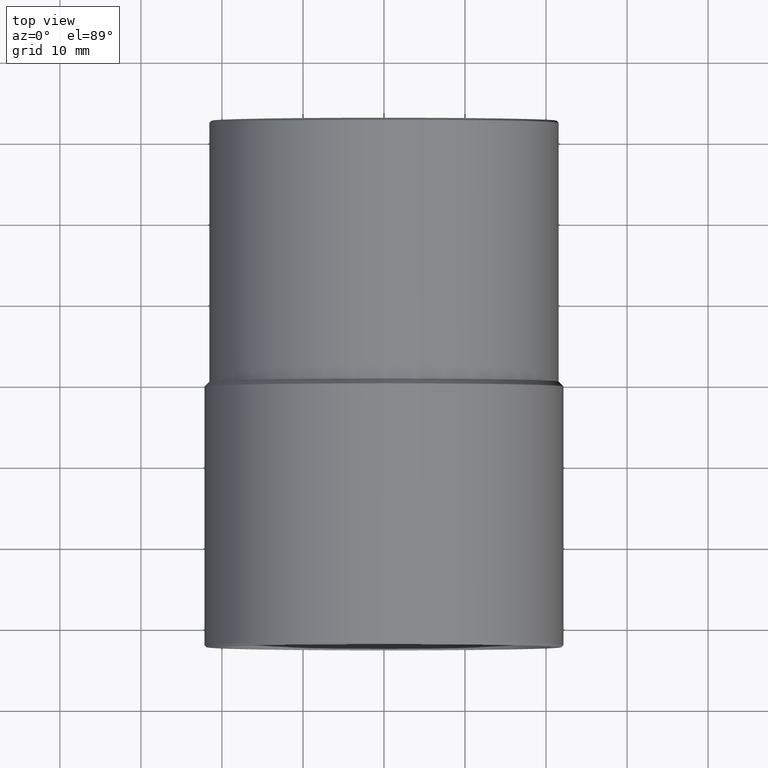
[diagram: clean part render]
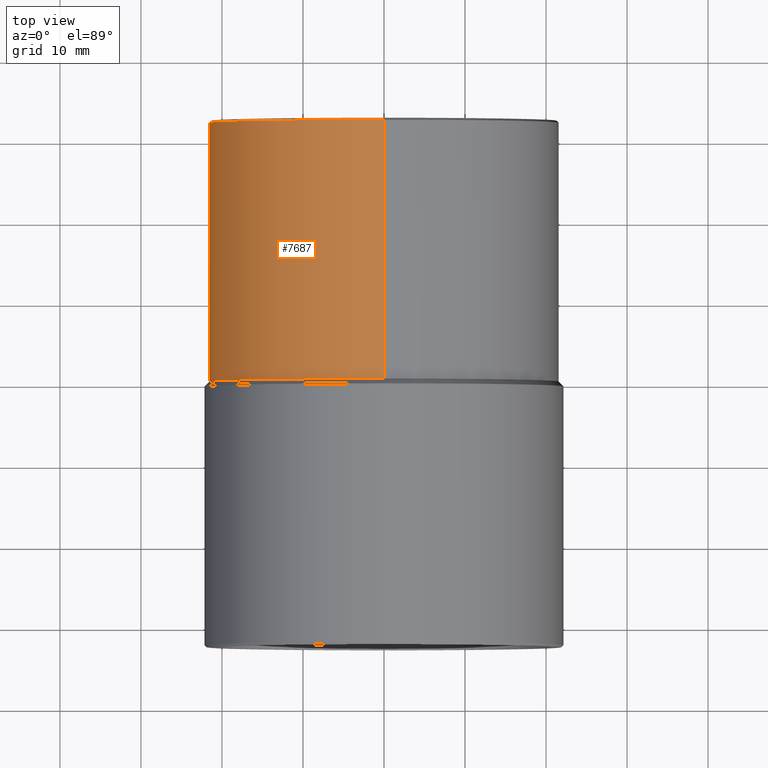
[diagram: same view with one face highlighted and labeled with its STEP entity id]
A machine part, top view. The second image highlights one B-rep face of the part: STEP entity #7687.
In plain terms, the highlighted cylindrical surface (partial cylindrical patch) has radius 21.55 mm, axis along (-0, -1, -0).
Its self-contained STEP definition (entity closure, byte-faithful):
#201 = DIRECTION ( 'NONE',  ( 0.0000000000000000000, -1.000000000000000000, 0.0000000000000000000 ) ) ;
#744 = DIRECTION ( 'NONE',  ( 0.0000000000000000000, 0.0000000000000000000, -1.000000000000000000 ) ) ;
#756 = CARTESIAN_POINT ( 'NONE',  ( 2.639113852162545900E-015, 32.50000000000000000, 21.54999999999999700 ) ) ;
#810 = ORIENTED_EDGE ( 'NONE', *, *, #8855, .T. ) ;
#828 = EDGE_CURVE ( 'NONE', #10078, #3548, #9517, .T. ) ;
#1087 = CARTESIAN_POINT ( 'NONE',  ( 0.0000000000000000000, 32.50000000000000000, -21.54999999999999700 ) ) ;
#1099 = VECTOR ( 'NONE', #6083, 1000.000000000000000 ) ;
#1357 = LINE ( 'NONE', #1087, #1099 ) ;
#2141 = VECTOR ( 'NONE', #5756, 1000.000000000000000 ) ;
#2380 = CARTESIAN_POINT ( 'NONE',  ( 0.0000000000000000000, 32.25000000000001400, -21.54999999999999700 ) ) ;
#3061 = DIRECTION ( 'NONE',  ( 0.0000000000000000000, 0.0000000000000000000, 1.000000000000000000 ) ) ;
#3126 = DIRECTION ( 'NONE',  ( -0.0000000000000000000, 1.000000000000000000, -0.0000000000000000000 ) ) ;
#3134 = CYLINDRICAL_SURFACE ( 'NONE', #9570, 21.54999999999999700 ) ;
#3302 = EDGE_CURVE ( 'NONE', #10717, #3548, #7125, .T. ) ;
#3548 = VERTEX_POINT ( 'NONE', #6007 ) ;
#3573 = EDGE_CURVE ( 'NONE', #10001, #10078, #1357, .T. ) ;
#4089 = CIRCLE ( 'NONE', #7876, 21.54999999999999700 ) ;
#4676 = CARTESIAN_POINT ( 'NONE',  ( 0.0000000000000000000, 0.2999999999999947200, 0.0000000000000000000 ) ) ;
#4915 = DIRECTION ( 'NONE',  ( -0.0000000000000000000, -1.000000000000000000, -0.0000000000000000000 ) ) ;
#5020 = CARTESIAN_POINT ( 'NONE',  ( 0.0000000000000000000, 0.2999999999999947200, -21.54999999999999700 ) ) ;
#5206 = CARTESIAN_POINT ( 'NONE',  ( 0.0000000000000000000, 32.25000000000001400, 0.0000000000000000000 ) ) ;
#5739 = CARTESIAN_POINT ( 'NONE',  ( 0.0000000000000000000, 32.50000000000000000, 0.0000000000000000000 ) ) ;
#5756 = DIRECTION ( 'NONE',  ( -0.0000000000000000000, -1.000000000000000000, -0.0000000000000000000 ) ) ;
#6007 = CARTESIAN_POINT ( 'NONE',  ( 2.639113852162545900E-015, 0.2999999999999947200, 21.54999999999999700 ) ) ;
#6035 = DIRECTION ( 'NONE',  ( 0.0000000000000000000, 0.0000000000000000000, 1.000000000000000000 ) ) ;
#6078 = ORIENTED_EDGE ( 'NONE', *, *, #3302, .F. ) ;
#6083 = DIRECTION ( 'NONE',  ( -0.0000000000000000000, -1.000000000000000000, -0.0000000000000000000 ) ) ;
#7125 = LINE ( 'NONE', #756, #2141 ) ;
#7614 = FACE_OUTER_BOUND ( 'NONE', #7816, .T. ) ;
#7687 = ADVANCED_FACE ( 'NONE', ( #7614 ), #3134, .T. ) ;
#7815 = CARTESIAN_POINT ( 'NONE',  ( 2.639113852162545900E-015, 32.25000000000001400, 21.54999999999999700 ) ) ;
#7816 = EDGE_LOOP ( 'NONE', ( #6078, #810, #9396, #8832 ) ) ;
#7876 = AXIS2_PLACEMENT_3D ( 'NONE', #5206, #201, #6035 ) ;
#8832 = ORIENTED_EDGE ( 'NONE', *, *, #828, .T. ) ;
#8855 = EDGE_CURVE ( 'NONE', #10717, #10001, #4089, .T. ) ;
#9396 = ORIENTED_EDGE ( 'NONE', *, *, #3573, .T. ) ;
#9517 = CIRCLE ( 'NONE', #10662, 21.54999999999999700 ) ;
#9570 = AXIS2_PLACEMENT_3D ( 'NONE', #5739, #4915, #744 ) ;
#10001 = VERTEX_POINT ( 'NONE', #2380 ) ;
#10078 = VERTEX_POINT ( 'NONE', #5020 ) ;
#10662 = AXIS2_PLACEMENT_3D ( 'NONE', #4676, #3126, #3061 ) ;
#10717 = VERTEX_POINT ( 'NONE', #7815 ) ;